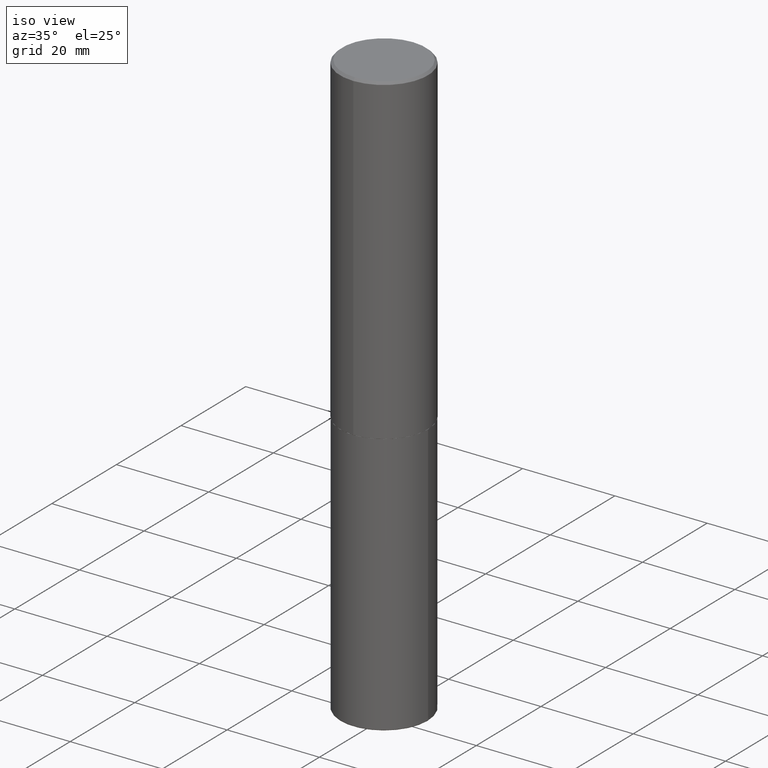
[diagram: clean part render]
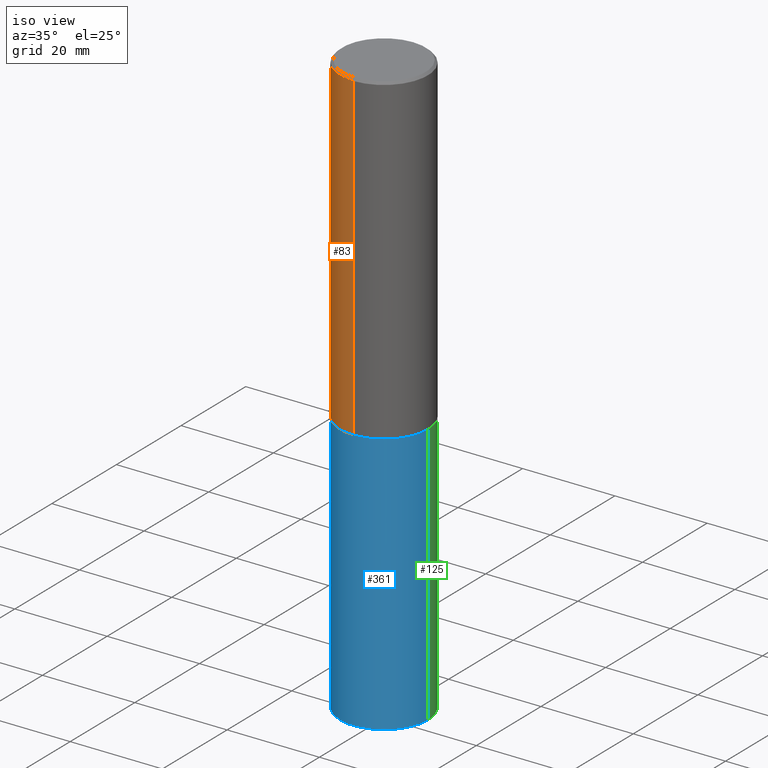
[diagram: same view with three faces highlighted in distinct colors, each labeled with its STEP entity id]
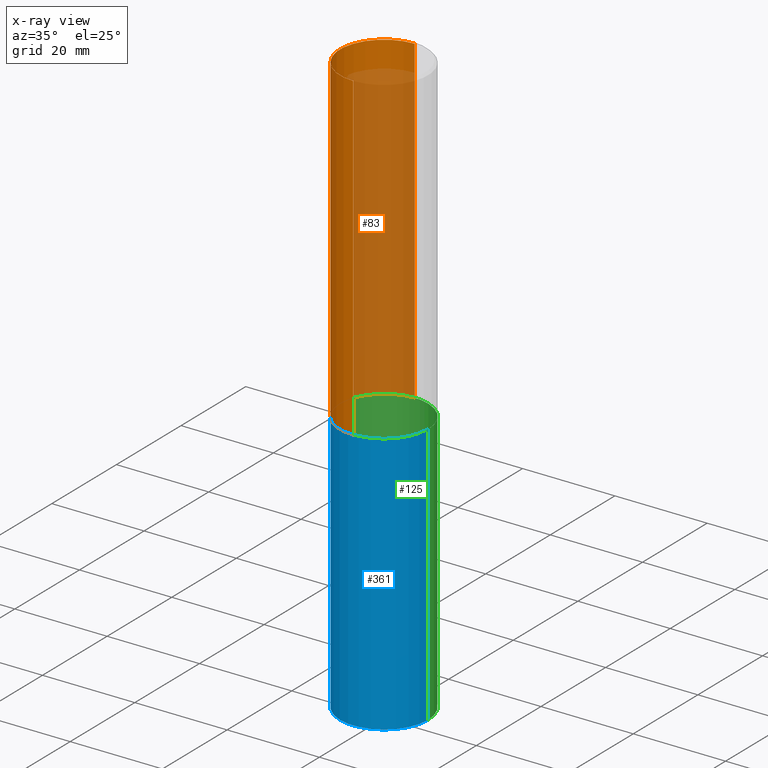
[diagram: x-ray of the same camera — body ghosted, the three highlighted faces saturated]
A machine part, iso view with three faces highlighted in distinct colors.
The next image is the same camera in x-ray (body ghosted, the three faces saturated) — at least one of them is partly hidden behind the body in this view.
Their STEP definitions:

[orange] entity #83 — the highlighted cylindrical surface (partial cylindrical patch) has radius 9.525 mm, axis along (-0, 0, 1).
#8 = ORIENTED_EDGE ( 'NONE', *, *, #354, .F. ) ;
#11 = DIRECTION ( 'NONE',  ( -6.982962677686265922E-15, -1.000000000000000000, 3.494488891895536035E-15 ) ) ;
#15 = AXIS2_PLACEMENT_3D ( 'NONE', #147, #62, #11 ) ;
#21 = CYLINDRICAL_SURFACE ( 'NONE', #369, 0.3750000000000002220 ) ;
#56 = LINE ( 'NONE', #181, #58 ) ;
#58 = VECTOR ( 'NONE', #396, 39.37007874015748143 ) ;
#62 = DIRECTION ( 'NONE',  ( -2.446040391741596606E-29, 3.490662795793665557E-15, 1.000000000000000000 ) ) ;
#72 = CIRCLE ( 'NONE', #15, 0.3750000000000000555 ) ;
#79 = DIRECTION ( 'NONE',  ( -6.982962677686266711E-15, -1.000000000000000000, 3.490662795793665951E-15 ) ) ;
#82 = ORIENTED_EDGE ( 'NONE', *, *, #154, .T. ) ;
#83 = ADVANCED_FACE ( 'NONE', ( #291 ), #21, .T. ) ;
#86 = ORIENTED_EDGE ( 'NONE', *, *, #319, .F. ) ;
#101 = ORIENTED_EDGE ( 'NONE', *, *, #387, .T. ) ;
#131 = DIRECTION ( 'NONE',  ( -2.446040391741596606E-29, 3.490662795793665557E-15, 1.000000000000000000 ) ) ;
#138 = CARTESIAN_POINT ( 'NONE',  ( -2.618611004132351594E-15, -0.3750000000000002220, 1.308998548422625521E-15 ) ) ;
#142 = CARTESIAN_POINT ( 'NONE',  ( -2.572686749164323547E-15, -0.3750000000000001110, -0.01999999999999877570 ) ) ;
#143 = VERTEX_POINT ( 'NONE', #155 ) ;
#147 = CARTESIAN_POINT ( 'NONE',  ( 4.892080783483214581E-31, -6.981325591587361238E-17, -0.02000000000000008715 ) ) ;
#153 = DIRECTION ( 'NONE',  ( -6.982962677686265922E-15, -1.000000000000000000, 2.913971193241877611E-15 ) ) ;
#154 = EDGE_CURVE ( 'NONE', #143, #294, #405, .T. ) ;
#155 = CARTESIAN_POINT ( 'NONE',  ( -2.618611004132284935E-15, -0.3750000000000099920, -2.748999999999999222 ) ) ;
#165 = CARTESIAN_POINT ( 'NONE',  ( 0.000000000000000000, 0.000000000000000000, 0.000000000000000000 ) ) ;
#170 = EDGE_LOOP ( 'NONE', ( #8, #101, #82, #86 ) ) ;
#181 = CARTESIAN_POINT ( 'NONE',  ( 2.664535259100376880E-15, 0.3750000000000002220, -1.308998548422625521E-15 ) ) ;
#200 = CIRCLE ( 'NONE', #277, 0.3750000000000003886 ) ;
#242 = CARTESIAN_POINT ( 'NONE',  ( 2.618611004132350411E-15, 0.3749999999999999445, -0.02000000000000139513 ) ) ;
#256 = VERTEX_POINT ( 'NONE', #310 ) ;
#277 = AXIS2_PLACEMENT_3D ( 'NONE', #378, #326, #153 ) ;
#291 = FACE_OUTER_BOUND ( 'NONE', #170, .T. ) ;
#294 = VERTEX_POINT ( 'NONE', #142 ) ;
#298 = DIRECTION ( 'NONE',  ( -2.446040391741596606E-29, 3.490662795793665557E-15, 1.000000000000000000 ) ) ;
#310 = CARTESIAN_POINT ( 'NONE',  ( 2.664535259100411196E-15, 0.3749999999999907296, -2.749000000000000998 ) ) ;
#319 = EDGE_CURVE ( 'NONE', #397, #294, #72, .T. ) ;
#326 = DIRECTION ( 'NONE',  ( -2.446040391741596606E-29, 3.490662795793665557E-15, 1.000000000000000000 ) ) ;
#354 = EDGE_CURVE ( 'NONE', #256, #397, #56, .T. ) ;
#369 = AXIS2_PLACEMENT_3D ( 'NONE', #165, #298, #79 ) ;
#378 = CARTESIAN_POINT ( 'NONE',  ( 6.724165036897648492E-29, -9.595832025636787455E-15, -2.749000000000000110 ) ) ;
#387 = EDGE_CURVE ( 'NONE', #256, #143, #200, .T. ) ;
#392 = VECTOR ( 'NONE', #131, 39.37007874015748143 ) ;
#396 = DIRECTION ( 'NONE',  ( -2.446040391741596606E-29, 3.490662795793665557E-15, 1.000000000000000000 ) ) ;
#397 = VERTEX_POINT ( 'NONE', #242 ) ;
#405 = LINE ( 'NONE', #138, #392 ) ;

[blue] entity #361 — the highlighted cylindrical surface (partial cylindrical patch) has radius 9.525 mm, axis along (-0, 0, 1).
#3 = DIRECTION ( 'NONE',  ( -2.445468806185136597E-29, 3.491481338843145583E-15, 1.000000000000000000 ) ) ;
#17 = CARTESIAN_POINT ( 'NONE',  ( 0.3750000000000000555, -2.618611004132350016E-15, 1.828566290923476203E-29 ) ) ;
#29 = CARTESIAN_POINT ( 'NONE',  ( 0.3750000000000003886, -2.004110288495964667E-14, -4.990000000000000213 ) ) ;
#45 = EDGE_CURVE ( 'NONE', #201, #364, #286, .T. ) ;
#46 = DIRECTION ( 'NONE',  ( 1.000000000000000000, -6.982962677686266711E-15, 0.000000000000000000 ) ) ;
#63 = EDGE_CURVE ( 'NONE', #279, #356, #160, .T. ) ;
#65 = AXIS2_PLACEMENT_3D ( 'NONE', #265, #368, #67 ) ;
#67 = DIRECTION ( 'NONE',  ( 1.000000000000000000, -6.982962677686265922E-15, 4.876176775795935793E-29 ) ) ;
#71 = ORIENTED_EDGE ( 'NONE', *, *, #99, .F. ) ;
#98 = FACE_OUTER_BOUND ( 'NONE', #215, .T. ) ;
#99 = EDGE_CURVE ( 'NONE', #364, #356, #358, .T. ) ;
#111 = CARTESIAN_POINT ( 'NONE',  ( -0.3750000000000000555, 2.664535259100376091E-15, -1.844600658845589598E-29 ) ) ;
#128 = CARTESIAN_POINT ( 'NONE',  ( 6.725039217009124520E-29, -9.601573681818649859E-15, -2.750000000000000000 ) ) ;
#141 = VECTOR ( 'NONE', #380, 39.37007874015748143 ) ;
#160 = LINE ( 'NONE', #17, #141 ) ;
#199 = CARTESIAN_POINT ( 'NONE',  ( -0.3750000000000000555, -1.084749752222259835E-14, -2.750000000000000000 ) ) ;
#201 = VERTEX_POINT ( 'NONE', #394 ) ;
#215 = EDGE_LOOP ( 'NONE', ( #241, #299, #274, #71 ) ) ;
#233 = CYLINDRICAL_SURFACE ( 'NONE', #65, 0.3750000000000000555 ) ;
#237 = CARTESIAN_POINT ( 'NONE',  ( 0.3750000000000000555, -1.222018468595100145E-14, -2.750000000000000000 ) ) ;
#241 = ORIENTED_EDGE ( 'NONE', *, *, #45, .F. ) ;
#252 = AXIS2_PLACEMENT_3D ( 'NONE', #128, #353, #46 ) ;
#265 = CARTESIAN_POINT ( 'NONE',  ( 0.000000000000000000, 0.000000000000000000, 0.000000000000000000 ) ) ;
#267 = CARTESIAN_POINT ( 'NONE',  ( 1.220288934286383144E-28, -1.742249188082729666E-14, -4.990000000000000213 ) ) ;
#273 = DIRECTION ( 'NONE',  ( 1.000000000000000000, -6.982962677686261189E-15, 0.000000000000000000 ) ) ;
#274 = ORIENTED_EDGE ( 'NONE', *, *, #63, .T. ) ;
#279 = VERTEX_POINT ( 'NONE', #29 ) ;
#286 = LINE ( 'NONE', #111, #337 ) ;
#299 = ORIENTED_EDGE ( 'NONE', *, *, #357, .T. ) ;
#337 = VECTOR ( 'NONE', #376, 39.37007874015748143 ) ;
#353 = DIRECTION ( 'NONE',  ( -2.445468806185136597E-29, 3.491481338843145583E-15, 1.000000000000000000 ) ) ;
#356 = VERTEX_POINT ( 'NONE', #237 ) ;
#357 = EDGE_CURVE ( 'NONE', #201, #279, #403, .T. ) ;
#358 = CIRCLE ( 'NONE', #252, 0.3750000000000000555 ) ;
#361 = ADVANCED_FACE ( 'NONE', ( #98 ), #233, .T. ) ;
#364 = VERTEX_POINT ( 'NONE', #199 ) ;
#368 = DIRECTION ( 'NONE',  ( -2.445468806185136597E-29, 3.491481338843145583E-15, 1.000000000000000000 ) ) ;
#376 = DIRECTION ( 'NONE',  ( -2.445468806185136877E-29, 3.491481338843145188E-15, 1.000000000000000000 ) ) ;
#380 = DIRECTION ( 'NONE',  ( -2.445468806185136877E-29, 3.491481338843145188E-15, 1.000000000000000000 ) ) ;
#386 = AXIS2_PLACEMENT_3D ( 'NONE', #267, #3, #273 ) ;
#394 = CARTESIAN_POINT ( 'NONE',  ( -0.3750000000000003886, -1.475795662172691781E-14, -4.990000000000000213 ) ) ;
#403 = CIRCLE ( 'NONE', #386, 0.3750000000000000555 ) ;

[green] entity #125 — the highlighted cylindrical surface (partial cylindrical patch) has radius 9.525 mm, axis along (-0, 0, 1).
#4 = DIRECTION ( 'NONE',  ( 1.000000000000000000, -6.982962677686261189E-15, 0.000000000000000000 ) ) ;
#17 = CARTESIAN_POINT ( 'NONE',  ( 0.3750000000000000555, -2.618611004132350016E-15, 1.828566290923476203E-29 ) ) ;
#18 = DIRECTION ( 'NONE',  ( -2.445468806185136597E-29, 3.491481338843145583E-15, 1.000000000000000000 ) ) ;
#25 = DIRECTION ( 'NONE',  ( 1.000000000000000000, -6.982962677686266711E-15, 0.000000000000000000 ) ) ;
#29 = CARTESIAN_POINT ( 'NONE',  ( 0.3750000000000003886, -2.004110288495964667E-14, -4.990000000000000213 ) ) ;
#45 = EDGE_CURVE ( 'NONE', #201, #364, #286, .T. ) ;
#63 = EDGE_CURVE ( 'NONE', #279, #356, #160, .T. ) ;
#87 = CARTESIAN_POINT ( 'NONE',  ( 0.000000000000000000, 0.000000000000000000, 0.000000000000000000 ) ) ;
#111 = CARTESIAN_POINT ( 'NONE',  ( -0.3750000000000000555, 2.664535259100376091E-15, -1.844600658845589598E-29 ) ) ;
#116 = DIRECTION ( 'NONE',  ( 1.000000000000000000, -6.982962677686265922E-15, 4.876176775795935793E-29 ) ) ;
#125 = ADVANCED_FACE ( 'NONE', ( #383 ), #258, .T. ) ;
#141 = VECTOR ( 'NONE', #380, 39.37007874015748143 ) ;
#149 = AXIS2_PLACEMENT_3D ( 'NONE', #275, #305, #4 ) ;
#160 = LINE ( 'NONE', #17, #141 ) ;
#187 = CIRCLE ( 'NONE', #410, 0.3750000000000000555 ) ;
#194 = ORIENTED_EDGE ( 'NONE', *, *, #63, .F. ) ;
#199 = CARTESIAN_POINT ( 'NONE',  ( -0.3750000000000000555, -1.084749752222259835E-14, -2.750000000000000000 ) ) ;
#201 = VERTEX_POINT ( 'NONE', #394 ) ;
#202 = DIRECTION ( 'NONE',  ( -2.445468806185136597E-29, 3.491481338843145583E-15, 1.000000000000000000 ) ) ;
#227 = CARTESIAN_POINT ( 'NONE',  ( 6.725039217009124520E-29, -9.601573681818649859E-15, -2.750000000000000000 ) ) ;
#228 = AXIS2_PLACEMENT_3D ( 'NONE', #87, #18, #116 ) ;
#234 = EDGE_CURVE ( 'NONE', #356, #364, #187, .T. ) ;
#237 = CARTESIAN_POINT ( 'NONE',  ( 0.3750000000000000555, -1.222018468595100145E-14, -2.750000000000000000 ) ) ;
#246 = EDGE_LOOP ( 'NONE', ( #259, #272, #249, #194 ) ) ;
#249 = ORIENTED_EDGE ( 'NONE', *, *, #234, .F. ) ;
#258 = CYLINDRICAL_SURFACE ( 'NONE', #228, 0.3750000000000000555 ) ;
#259 = ORIENTED_EDGE ( 'NONE', *, *, #351, .T. ) ;
#272 = ORIENTED_EDGE ( 'NONE', *, *, #45, .T. ) ;
#275 = CARTESIAN_POINT ( 'NONE',  ( 1.220288934286383144E-28, -1.742249188082729666E-14, -4.990000000000000213 ) ) ;
#279 = VERTEX_POINT ( 'NONE', #29 ) ;
#286 = LINE ( 'NONE', #111, #337 ) ;
#296 = CIRCLE ( 'NONE', #149, 0.3750000000000000555 ) ;
#305 = DIRECTION ( 'NONE',  ( -2.445468806185136597E-29, 3.491481338843145583E-15, 1.000000000000000000 ) ) ;
#337 = VECTOR ( 'NONE', #376, 39.37007874015748143 ) ;
#351 = EDGE_CURVE ( 'NONE', #279, #201, #296, .T. ) ;
#356 = VERTEX_POINT ( 'NONE', #237 ) ;
#364 = VERTEX_POINT ( 'NONE', #199 ) ;
#376 = DIRECTION ( 'NONE',  ( -2.445468806185136877E-29, 3.491481338843145188E-15, 1.000000000000000000 ) ) ;
#380 = DIRECTION ( 'NONE',  ( -2.445468806185136877E-29, 3.491481338843145188E-15, 1.000000000000000000 ) ) ;
#383 = FACE_OUTER_BOUND ( 'NONE', #246, .T. ) ;
#394 = CARTESIAN_POINT ( 'NONE',  ( -0.3750000000000003886, -1.475795662172691781E-14, -4.990000000000000213 ) ) ;
#410 = AXIS2_PLACEMENT_3D ( 'NONE', #227, #202, #25 ) ;